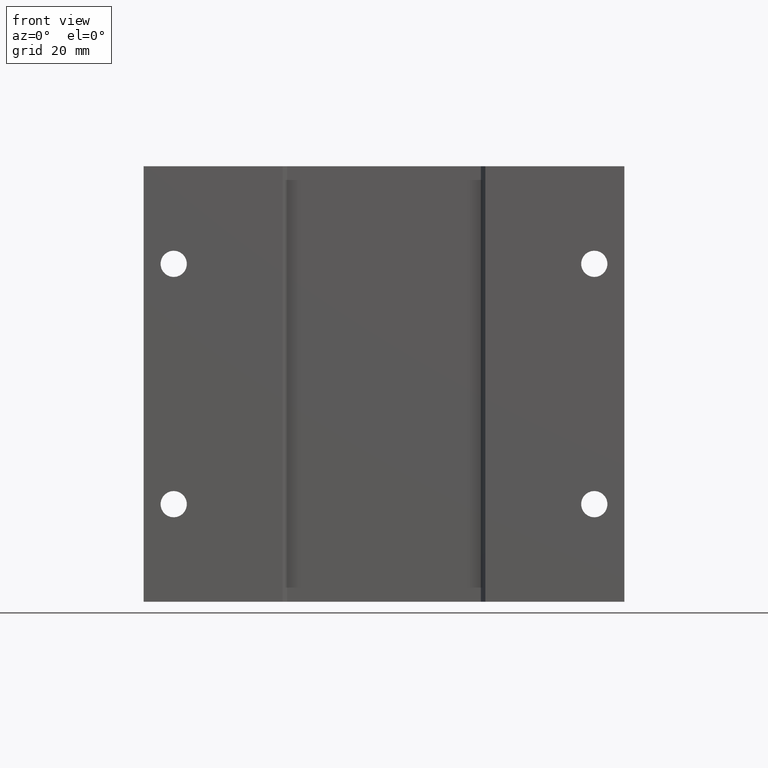
[diagram: clean part render]
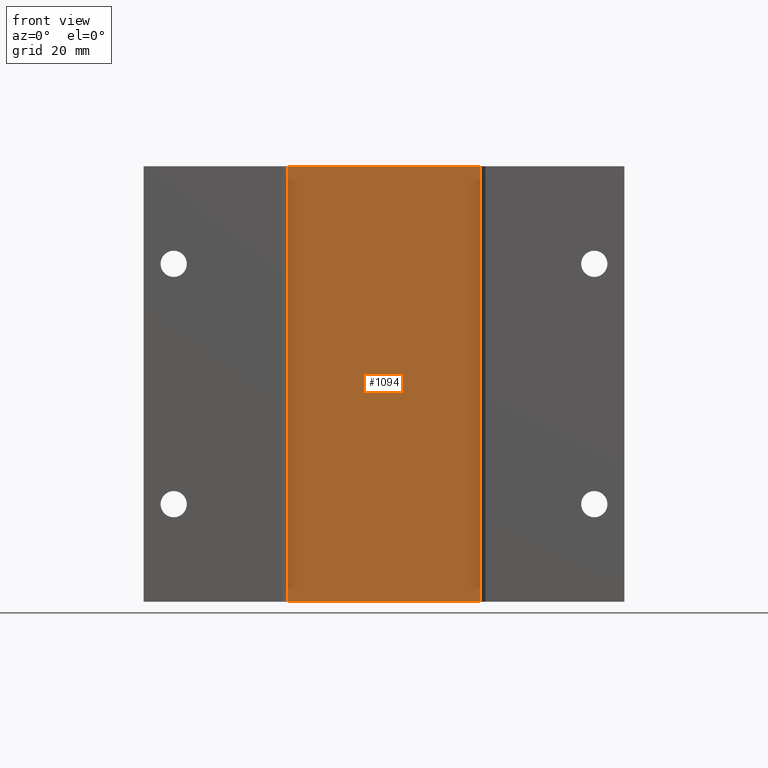
[diagram: same view with one face highlighted and labeled with its STEP entity id]
A machine part, front view. The second image highlights one B-rep face of the part: STEP entity #1094.
In plain terms, the highlighted planar face has unit normal (-0, 1, 0).
Its self-contained STEP definition (entity closure, byte-faithful):
#254 = ORIENTED_EDGE ( 'NONE', *, *, #1826, .F. ) ;
#485 = LINE ( 'NONE', #5292, #3154 ) ;
#913 = ORIENTED_EDGE ( 'NONE', *, *, #7297, .T. ) ;
#1005 = LINE ( 'NONE', #4239, #4742 ) ;
#1094 = ADVANCED_FACE ( 'NONE', ( #7554 ), #3213, .F. ) ;
#1136 = EDGE_CURVE ( 'NONE', #6579, #8082, #2395, .T. ) ;
#1461 = DIRECTION ( 'NONE',  ( -1.000000000000000000, -3.389704034244471033E-16, -0.000000000000000000 ) ) ;
#1475 = ORIENTED_EDGE ( 'NONE', *, *, #1136, .F. ) ;
#1578 = CARTESIAN_POINT ( 'NONE',  ( -0.8059252271188812600, -1.435000000000000053, 1.812499999999999778 ) ) ;
#1669 = DIRECTION ( 'NONE',  ( -1.000000000000000000, -3.389704034244471033E-16, 0.000000000000000000 ) ) ;
#1713 = EDGE_LOOP ( 'NONE', ( #913, #2653, #254, #1475 ) ) ;
#1747 = DIRECTION ( 'NONE',  ( -1.000000000000000000, -3.389704034244471033E-16, 0.000000000000000000 ) ) ;
#1826 = EDGE_CURVE ( 'NONE', #8082, #3947, #1005, .T. ) ;
#1828 = CARTESIAN_POINT ( 'NONE',  ( -0.8059252271188812600, -1.435000000000000053, -1.812501968503936967 ) ) ;
#2395 = LINE ( 'NONE', #3578, #3950 ) ;
#2653 = ORIENTED_EDGE ( 'NONE', *, *, #3463, .T. ) ;
#2787 = CARTESIAN_POINT ( 'NONE',  ( 0.8059252271188813710, -1.434999999999999609, -1.812499999999999778 ) ) ;
#2856 = DIRECTION ( 'NONE',  ( -0.000000000000000000, -0.000000000000000000, 1.000000000000000000 ) ) ;
#2956 = DIRECTION ( 'NONE',  ( -0.000000000000000000, -0.000000000000000000, 1.000000000000000000 ) ) ;
#3044 = DIRECTION ( 'NONE',  ( -3.389704034244471033E-16, 1.000000000000000000, 0.000000000000000000 ) ) ;
#3154 = VECTOR ( 'NONE', #2956, 39.37007874015748143 ) ;
#3213 = PLANE ( 'NONE',  #7231 ) ;
#3463 = EDGE_CURVE ( 'NONE', #7642, #3947, #3893, .T. ) ;
#3475 = CARTESIAN_POINT ( 'NONE',  ( -0.8059252271188812600, -1.435000000000000053, 1.812499999999999778 ) ) ;
#3578 = CARTESIAN_POINT ( 'NONE',  ( 4.864225289140815516E-16, -1.434999999999999831, -1.812499999999999778 ) ) ;
#3734 = CARTESIAN_POINT ( 'NONE',  ( 0.8059252271188813710, -1.434999999999999609, 1.812499999999999778 ) ) ;
#3893 = LINE ( 'NONE', #1578, #6747 ) ;
#3947 = VERTEX_POINT ( 'NONE', #3475 ) ;
#3950 = VECTOR ( 'NONE', #1747, 39.37007874015748143 ) ;
#4239 = CARTESIAN_POINT ( 'NONE',  ( -0.8059252271188812600, -1.435000000000000053, -1.812501968503936967 ) ) ;
#4742 = VECTOR ( 'NONE', #2856, 39.37007874015748143 ) ;
#5292 = CARTESIAN_POINT ( 'NONE',  ( 0.8059252271188813710, -1.434999999999999609, -1.812501968503936967 ) ) ;
#5668 = CARTESIAN_POINT ( 'NONE',  ( -0.8059252271188812600, -1.435000000000000053, -1.812499999999999778 ) ) ;
#6579 = VERTEX_POINT ( 'NONE', #2787 ) ;
#6747 = VECTOR ( 'NONE', #1461, 39.37007874015748143 ) ;
#7231 = AXIS2_PLACEMENT_3D ( 'NONE', #1828, #3044, #1669 ) ;
#7297 = EDGE_CURVE ( 'NONE', #6579, #7642, #485, .T. ) ;
#7554 = FACE_OUTER_BOUND ( 'NONE', #1713, .T. ) ;
#7642 = VERTEX_POINT ( 'NONE', #3734 ) ;
#8082 = VERTEX_POINT ( 'NONE', #5668 ) ;